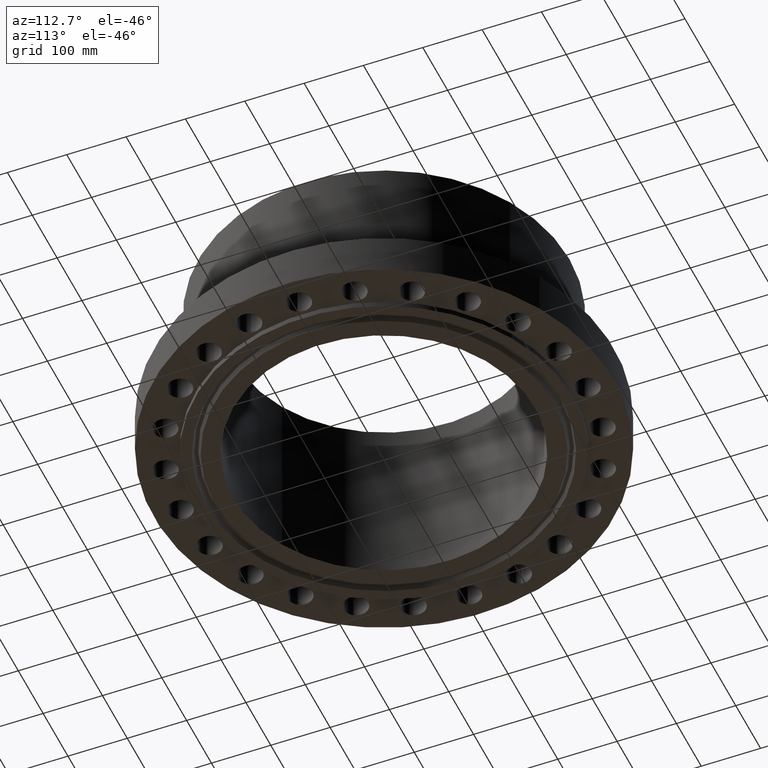
[diagram: clean part render]
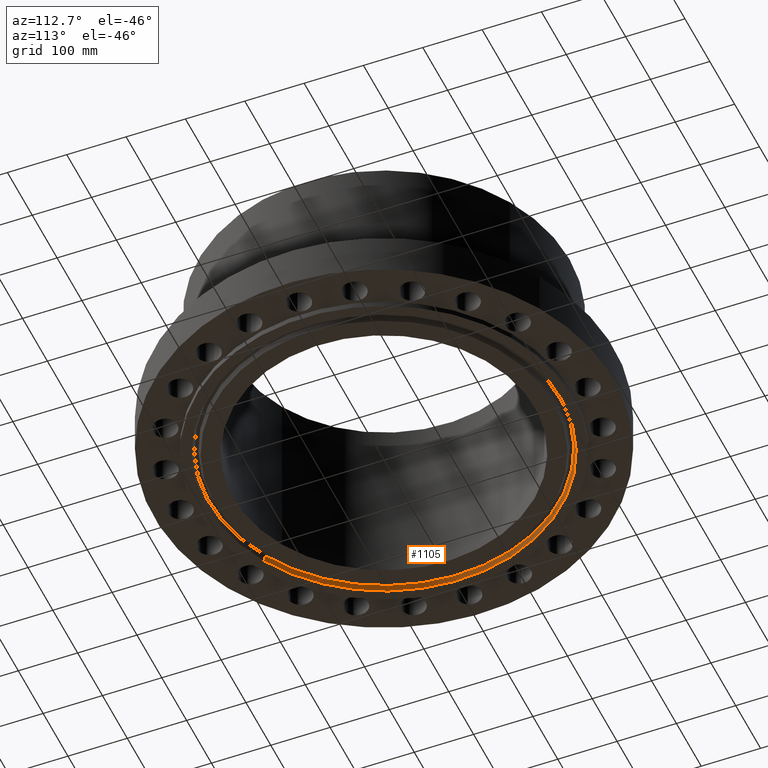
[diagram: same view with one face highlighted and labeled with its STEP entity id]
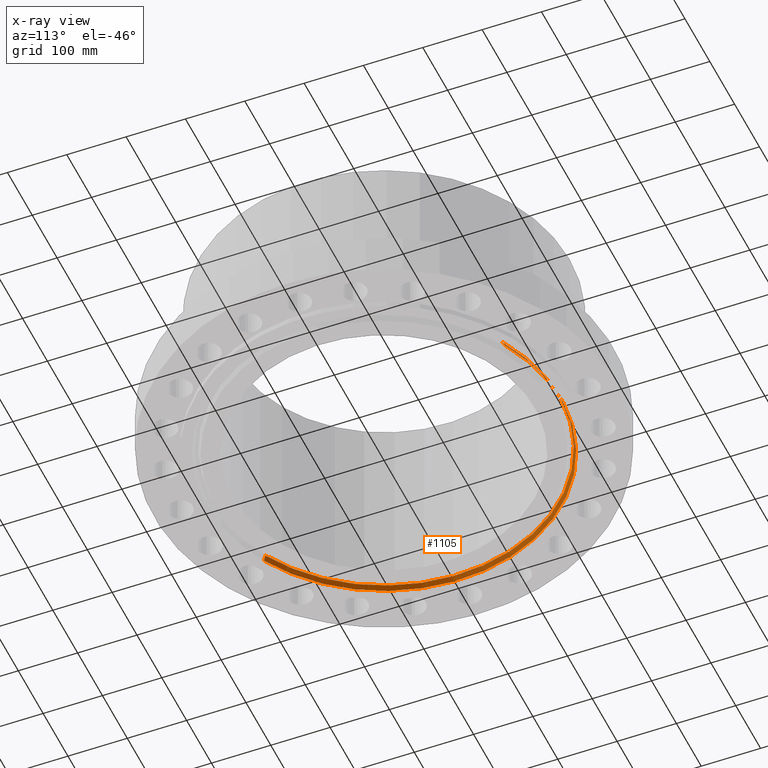
[diagram: x-ray of the same camera — body ghosted, the highlighted face saturated]
A machine part, auxiliary view. The second image highlights one B-rep face of the part: STEP entity #1105.
The next image is the same camera in x-ray: the body ghosted, the highlighted face saturated — about 0% of this face is hidden behind the body in this view.
In plain terms, the highlighted conical surface has half-angle 23 deg.
Its self-contained STEP definition (entity closure, byte-faithful):
#1046=AXIS2_PLACEMENT_3D('Circle Axis2P3D',#1044,#1045,$) ;
#1078=AXIS2_PLACEMENT_3D('Cone Axis2P3D',#1075,#1076,#1077) ;
#1089=AXIS2_PLACEMENT_3D('Circle Axis2P3D',#1087,#1088,$) ;
#1041=CARTESIAN_POINT('Vertex',(-5.57217843689,-10.1998042119,-0.0383839389053)) ;
#1044=CARTESIAN_POINT('Axis2P3D Location',(0.,0.,-0.0383839389053)) ;
#1048=CARTESIAN_POINT('Vertex',(5.57217843689,10.1998042119,-0.0383839389053)) ;
#1075=CARTESIAN_POINT('Axis2P3D Location',(0.,0.,-0.0383839389053)) ;
#1080=CARTESIAN_POINT('Line Origine',(-5.60642980568,-10.2625009219,-0.206691969453)) ;
#1084=CARTESIAN_POINT('Vertex',(-5.64068117447,-10.325197632,-0.375000000001)) ;
#1087=CARTESIAN_POINT('Axis2P3D Location',(0.,0.,-0.375000000001)) ;
#1091=CARTESIAN_POINT('Vertex',(5.64068117447,10.325197632,-0.375000000001)) ;
#1094=CARTESIAN_POINT('Line Origine',(5.60642980568,10.2625009219,-0.206691969453)) ;
#1045=DIRECTION('Axis2P3D Direction',(0.,0.,-0.0393700787402)) ;
#1076=DIRECTION('Axis2P3D Direction',(0.,0.,-0.0393700787402)) ;
#1077=DIRECTION('Axis2P3D XDirection',(0.0188750212049,0.0345504945626,0.)) ;
#1081=DIRECTION('Vector Direction',(-0.00737505833565,-0.0134999537303,-0.0362403485611)) ;
#1088=DIRECTION('Axis2P3D Direction',(0.,0.,-0.0393700787402)) ;
#1095=DIRECTION('Vector Direction',(0.00737505833565,0.0134999537303,-0.0362403485611)) ;
#1082=VECTOR('Line Direction',#1081,0.0393700787402) ;
#1096=VECTOR('Line Direction',#1095,0.0393700787402) ;
#1100=ORIENTED_EDGE('',*,*,#1050,.F.) ;
#1101=ORIENTED_EDGE('',*,*,#1086,.T.) ;
#1102=ORIENTED_EDGE('',*,*,#1093,.T.) ;
#1103=ORIENTED_EDGE('',*,*,#1098,.F.) ;
#1105=ADVANCED_FACE('PartBody',(#1104),#1079,.F.) ;
#1047=CIRCLE('generated circle',#1046,11.6226149594) ;
#1090=CIRCLE('generated circle',#1089,11.7655) ;
#1079=CONICAL_SURFACE('Cone',#1078,11.6226149594,0.401425727959) ;
#1050=EDGE_CURVE('',#1042,#1049,#1047,.T.) ;
#1086=EDGE_CURVE('',#1042,#1085,#1083,.T.) ;
#1093=EDGE_CURVE('',#1085,#1092,#1090,.T.) ;
#1098=EDGE_CURVE('',#1049,#1092,#1097,.T.) ;
#1099=EDGE_LOOP('',(#1100,#1101,#1102,#1103)) ;
#1104=FACE_OUTER_BOUND('',#1099,.T.) ;
#1083=LINE('Line',#1080,#1082) ;
#1097=LINE('Line',#1094,#1096) ;
#1042=VERTEX_POINT('',#1041) ;
#1049=VERTEX_POINT('',#1048) ;
#1085=VERTEX_POINT('',#1084) ;
#1092=VERTEX_POINT('',#1091) ;